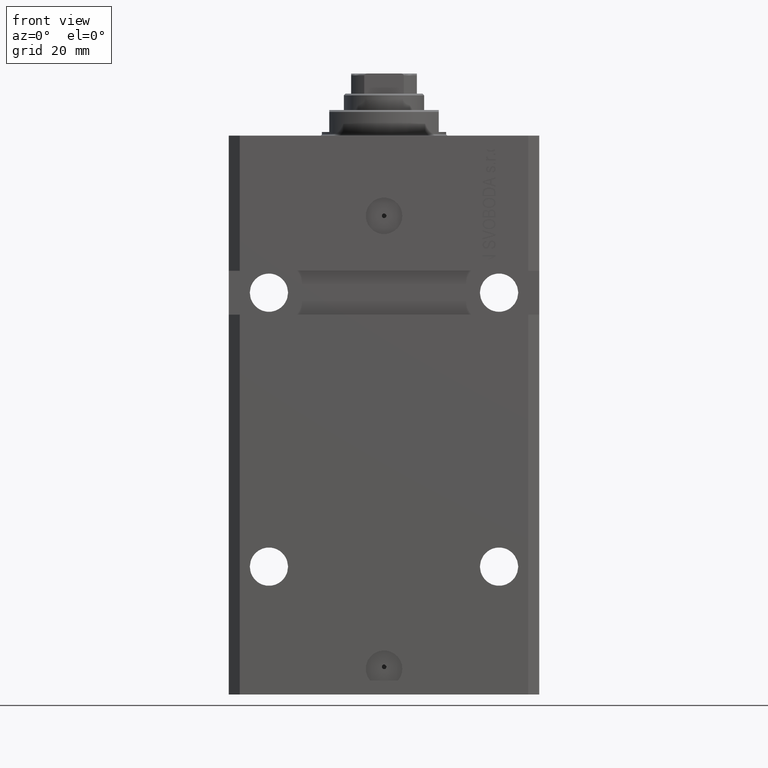
[diagram: clean part render]
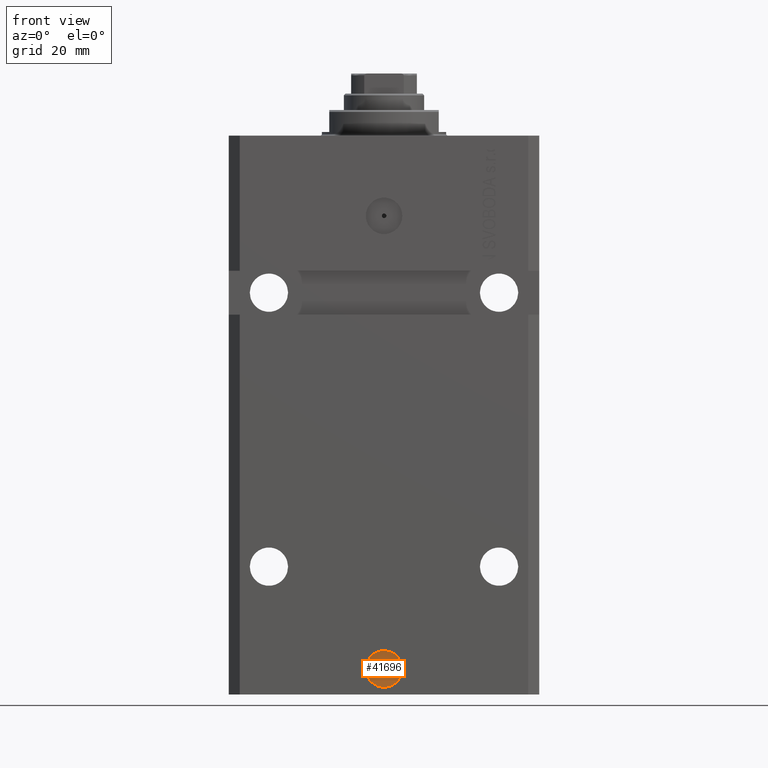
[diagram: same view with one face highlighted and labeled with its STEP entity id]
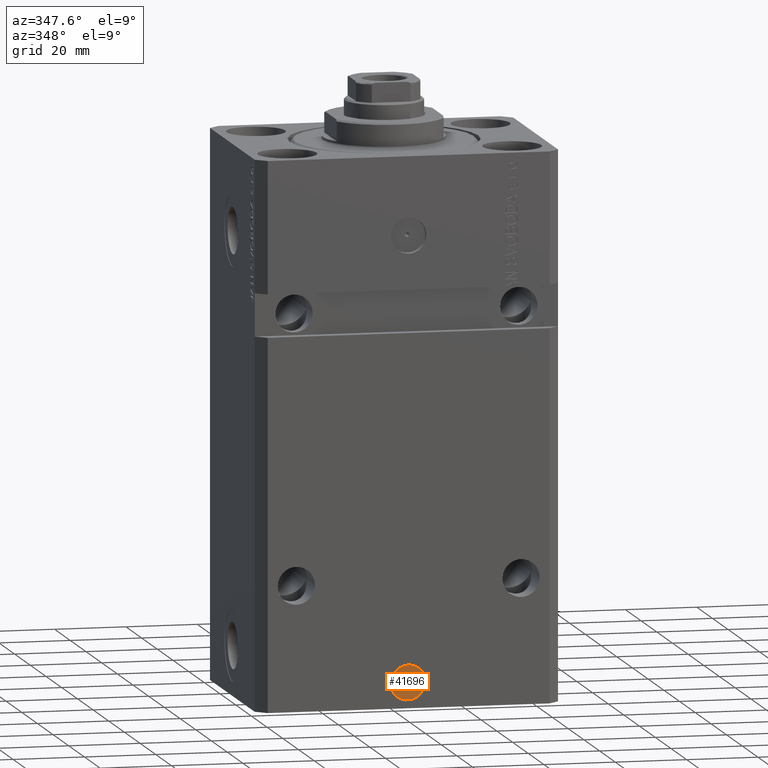
[diagram: same view with one face highlighted and labeled with its STEP entity id]
A machine part, front view. The second image highlights one B-rep face of the part: STEP entity #41696.
A second angle (auxiliary view) of the same face is appended — the face is thin or edge-on in the first view.
In plain terms, the highlighted planar face has unit normal (0, -1, 0).
Its self-contained STEP definition (entity closure, byte-faithful):
#162 = VERTEX_POINT ( 'NONE', #22773 ) ;
#6522 = DIRECTION ( 'NONE',  ( 1.176083712526788232E-16, -1.000000000000000000, 0.000000000000000000 ) ) ;
#6984 = DIRECTION ( 'NONE',  ( 1.176083712526788232E-16, -1.000000000000000000, 0.000000000000000000 ) ) ;
#8299 = CARTESIAN_POINT ( 'NONE',  ( -2.234559053800897838E-16, -29.60000000000000142, -146.0000000000000000 ) ) ;
#9505 = CARTESIAN_POINT ( 'NONE',  ( -2.234559053800897838E-16, -29.60000000000000142, -146.0000000000000000 ) ) ;
#9741 = DIRECTION ( 'NONE',  ( 1.000000000000000000, 0.000000000000000000, 0.000000000000000000 ) ) ;
#10057 = CIRCLE ( 'NONE', #14432, 5.000000000000006217 ) ;
#10364 = VERTEX_POINT ( 'NONE', #32760 ) ;
#10860 = EDGE_CURVE ( 'NONE', #162, #17629, #10057, .T. ) ;
#10971 = EDGE_LOOP ( 'NONE', ( #24120, #36716 ) ) ;
#11518 = AXIS2_PLACEMENT_3D ( 'NONE', #41841, #6984, #9741 ) ;
#11631 = ORIENTED_EDGE ( 'NONE', *, *, #11715, .F. ) ;
#11715 = EDGE_CURVE ( 'NONE', #35064, #10364, #25453, .T. ) ;
#11730 = PLANE ( 'NONE',  #39152 ) ;
#12183 = DIRECTION ( 'NONE',  ( 1.000000000000000000, 1.176083712526788232E-16, 0.000000000000000000 ) ) ;
#14432 = AXIS2_PLACEMENT_3D ( 'NONE', #9505, #6522, #38388 ) ;
#15827 = ORIENTED_EDGE ( 'NONE', *, *, #18161, .F. ) ;
#16851 = DIRECTION ( 'NONE',  ( 1.176083712526788232E-16, -1.000000000000000000, 0.000000000000000000 ) ) ;
#17576 = CIRCLE ( 'NONE', #18289, 5.000000000000006217 ) ;
#17629 = VERTEX_POINT ( 'NONE', #33069 ) ;
#18161 = EDGE_CURVE ( 'NONE', #10364, #35064, #22581, .T. ) ;
#18289 = AXIS2_PLACEMENT_3D ( 'NONE', #44383, #16851, #37950 ) ;
#22106 = EDGE_CURVE ( 'NONE', #17629, #162, #17576, .T. ) ;
#22509 = FACE_OUTER_BOUND ( 'NONE', #10971, .T. ) ;
#22581 = CIRCLE ( 'NONE', #31406, 0.6250000000000036637 ) ;
#22773 = CARTESIAN_POINT ( 'NONE',  ( 5.000000000000006217, -29.60000000000000142, -146.0000000000000000 ) ) ;
#23820 = CARTESIAN_POINT ( 'NONE',  ( 3.481207789079292456E-15, -29.60000000000000142, -145.4749999999999943 ) ) ;
#24120 = ORIENTED_EDGE ( 'NONE', *, *, #10860, .T. ) ;
#24860 = EDGE_LOOP ( 'NONE', ( #15827, #11631 ) ) ;
#25453 = CIRCLE ( 'NONE', #11518, 0.6250000000000036637 ) ;
#29401 = DIRECTION ( 'NONE',  ( 1.176083712526788232E-16, -1.000000000000000000, 0.000000000000000000 ) ) ;
#31406 = AXIS2_PLACEMENT_3D ( 'NONE', #23820, #37797, #34133 ) ;
#32760 = CARTESIAN_POINT ( 'NONE',  ( 0.6250000000000072164, -29.60000000000000142, -145.4749999999999943 ) ) ;
#33069 = CARTESIAN_POINT ( 'NONE',  ( -5.000000000000006217, -29.60000000000000142, -146.0000000000000000 ) ) ;
#33175 = CARTESIAN_POINT ( 'NONE',  ( -0.6250000000000002220, -29.60000000000000142, -145.4749999999999943 ) ) ;
#34133 = DIRECTION ( 'NONE',  ( 1.000000000000000000, 0.000000000000000000, 0.000000000000000000 ) ) ;
#35064 = VERTEX_POINT ( 'NONE', #33175 ) ;
#36716 = ORIENTED_EDGE ( 'NONE', *, *, #22106, .T. ) ;
#37797 = DIRECTION ( 'NONE',  ( 1.176083712526788232E-16, -1.000000000000000000, 0.000000000000000000 ) ) ;
#37950 = DIRECTION ( 'NONE',  ( 1.000000000000000000, 0.000000000000000000, 0.000000000000000000 ) ) ;
#38388 = DIRECTION ( 'NONE',  ( 1.000000000000000000, 0.000000000000000000, 0.000000000000000000 ) ) ;
#39152 = AXIS2_PLACEMENT_3D ( 'NONE', #8299, #29401, #12183 ) ;
#41696 = ADVANCED_FACE ( 'NONE', ( #43614, #22509 ), #11730, .T. ) ;
#41841 = CARTESIAN_POINT ( 'NONE',  ( 3.481207789079292456E-15, -29.60000000000000142, -145.4749999999999943 ) ) ;
#43614 = FACE_BOUND ( 'NONE', #24860, .T. ) ;
#44383 = CARTESIAN_POINT ( 'NONE',  ( -2.234559053800897838E-16, -29.60000000000000142, -146.0000000000000000 ) ) ;